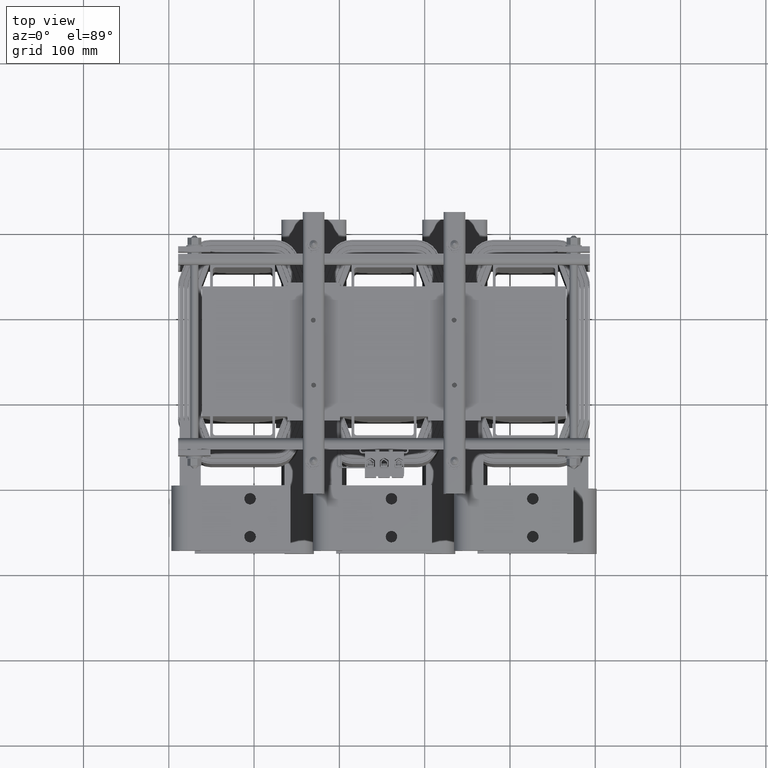
[diagram: clean part render]
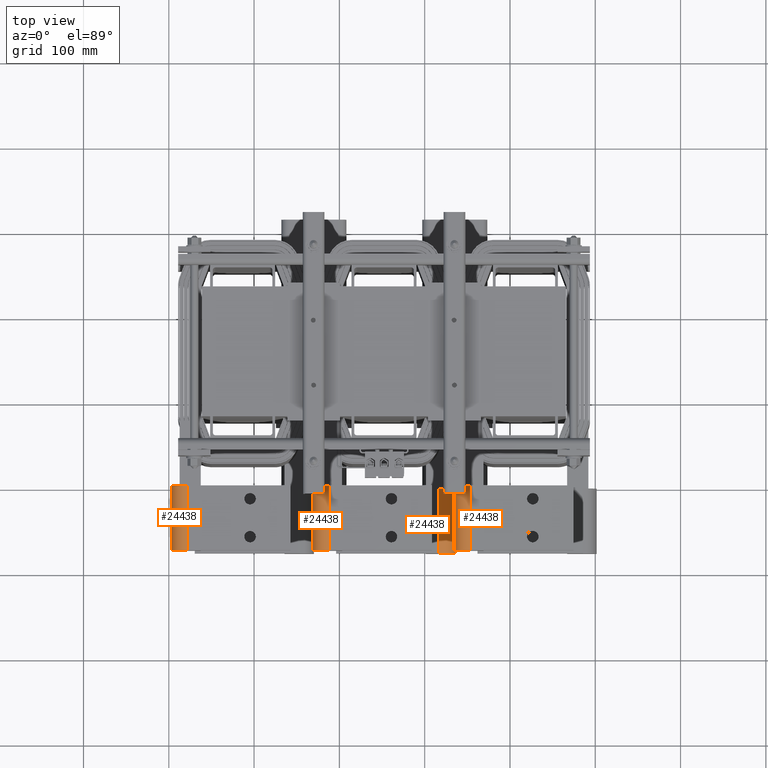
[diagram: same view with one multi-face feature highlighted, each face labeled with its STEP entity id]
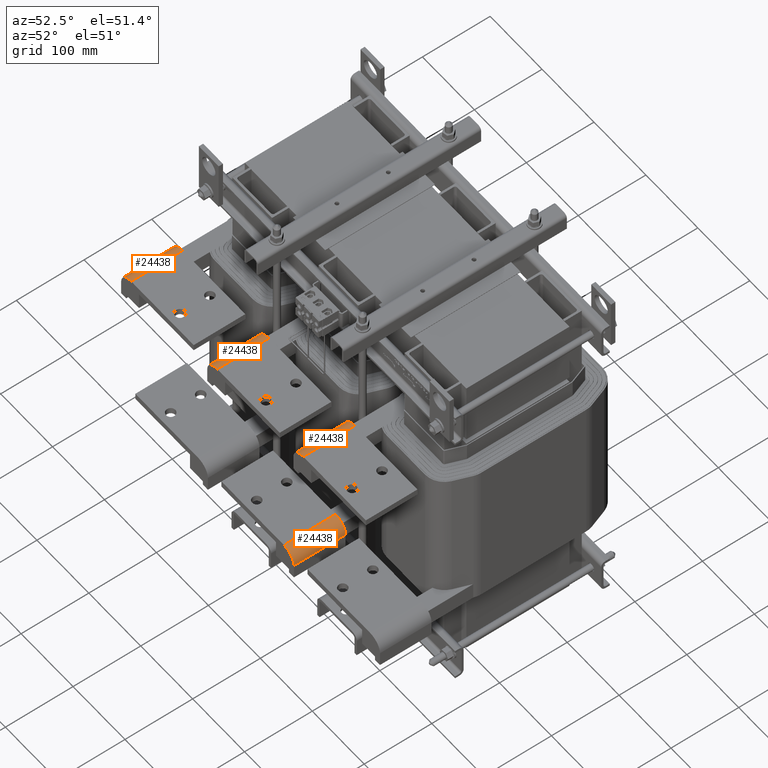
[diagram: same view with one multi-face feature highlighted, each face labeled with its STEP entity id]
A machine part, top view. The highlighted faces form ONE feature: a constant-radius fillet chain: 4 tangent blend faces with common blend radius 19.304 mm. The faces share edges in the B-rep.
A second angle (auxiliary view) of the same feature is appended — it is thin or edge-on in the first view.
Their STEP definitions:
[1] entity #24438 (Cylinder):
#1615=CIRCLE('',#26643,0.76);
#1617=CIRCLE('',#26646,0.76);
#2159=CYLINDRICAL_SURFACE('',#26645,0.76);
#3324=FACE_OUTER_BOUND('',#4703,.T.);
#4703=EDGE_LOOP('',(#20325,#20326,#20327,#20328));
#6839=LINE('',#41019,#9192);
#6840=LINE('',#41020,#9193);
#9192=VECTOR('',#31295,0.393700787401575);
#9193=VECTOR('',#31296,0.393700787401575);
#11463=VERTEX_POINT('',#41002);
#11464=VERTEX_POINT('',#41004);
#11469=VERTEX_POINT('',#41016);
#11470=VERTEX_POINT('',#41017);
#14539=EDGE_CURVE('',#11464,#11463,#1615,.T.);
#14545=EDGE_CURVE('',#11469,#11470,#1617,.T.);
#14546=EDGE_CURVE('',#11470,#11464,#6839,.T.);
#14547=EDGE_CURVE('',#11469,#11463,#6840,.T.);
#20325=ORIENTED_EDGE('',*,*,#14545,.T.);
#20326=ORIENTED_EDGE('',*,*,#14546,.T.);
#20327=ORIENTED_EDGE('',*,*,#14539,.T.);
#20328=ORIENTED_EDGE('',*,*,#14547,.F.);
#24438=ADVANCED_FACE('',(#3324),#2159,.T.);
#26643=AXIS2_PLACEMENT_3D('',#41005,#31283,#31284);
#26645=AXIS2_PLACEMENT_3D('',#41015,#31291,#31292);
#26646=AXIS2_PLACEMENT_3D('',#41018,#31293,#31294);
#31283=DIRECTION('center_axis',(0.,0.,1.));
#31284=DIRECTION('ref_axis',(0.,-1.,0.));
#31291=DIRECTION('center_axis',(0.,0.,1.));
#31292=DIRECTION('ref_axis',(0.,-1.,0.));
#31293=DIRECTION('center_axis',(0.,0.,-1.));
#31294=DIRECTION('ref_axis',(0.,-1.,0.));
#31295=DIRECTION('',(0.,0.,-1.));
#31296=DIRECTION('',(0.,0.,-1.));
#41002=CARTESIAN_POINT('',(3.49676543189026E-16,-0.0723516889799159,-1.5));
#41004=CARTESIAN_POINT('',(0.76,0.687648311020084,-1.5));
#41005=CARTESIAN_POINT('Origin',(0.76,-0.0723516889799157,-1.5));
#41015=CARTESIAN_POINT('Origin',(0.76,-0.0723516889799157,0.));
#41016=CARTESIAN_POINT('',(3.49676543189026E-16,-0.0723516889799159,1.5));
#41017=CARTESIAN_POINT('',(0.76,0.687648311020084,1.5));
#41018=CARTESIAN_POINT('Origin',(0.76,-0.0723516889799157,1.5));
#41019=CARTESIAN_POINT('',(0.76,0.687648311020084,0.));
#41020=CARTESIAN_POINT('',(3.49676543189026E-16,-0.0723516889799159,0.));
[2] entity #24438 (Cylinder):
#1615=CIRCLE('',#26643,0.76);
#1617=CIRCLE('',#26646,0.76);
#2159=CYLINDRICAL_SURFACE('',#26645,0.76);
#3324=FACE_OUTER_BOUND('',#4703,.T.);
#4703=EDGE_LOOP('',(#20325,#20326,#20327,#20328));
#6839=LINE('',#41019,#9192);
#6840=LINE('',#41020,#9193);
#9192=VECTOR('',#31295,0.393700787401575);
#9193=VECTOR('',#31296,0.393700787401575);
#11463=VERTEX_POINT('',#41002);
#11464=VERTEX_POINT('',#41004);
#11469=VERTEX_POINT('',#41016);
#11470=VERTEX_POINT('',#41017);
#14539=EDGE_CURVE('',#11464,#11463,#1615,.T.);
#14545=EDGE_CURVE('',#11469,#11470,#1617,.T.);
#14546=EDGE_CURVE('',#11470,#11464,#6839,.T.);
#14547=EDGE_CURVE('',#11469,#11463,#6840,.T.);
#20325=ORIENTED_EDGE('',*,*,#14545,.T.);
#20326=ORIENTED_EDGE('',*,*,#14546,.T.);
#20327=ORIENTED_EDGE('',*,*,#14539,.T.);
#20328=ORIENTED_EDGE('',*,*,#14547,.F.);
#24438=ADVANCED_FACE('',(#3324),#2159,.T.);
#26643=AXIS2_PLACEMENT_3D('',#41005,#31283,#31284);
#26645=AXIS2_PLACEMENT_3D('',#41015,#31291,#31292);
#26646=AXIS2_PLACEMENT_3D('',#41018,#31293,#31294);
#31283=DIRECTION('center_axis',(0.,0.,1.));
#31284=DIRECTION('ref_axis',(0.,-1.,0.));
#31291=DIRECTION('center_axis',(0.,0.,1.));
#31292=DIRECTION('ref_axis',(0.,-1.,0.));
#31293=DIRECTION('center_axis',(0.,0.,-1.));
#31294=DIRECTION('ref_axis',(0.,-1.,0.));
#31295=DIRECTION('',(0.,0.,-1.));
#31296=DIRECTION('',(0.,0.,-1.));
#41002=CARTESIAN_POINT('',(3.49676543189026E-16,-0.0723516889799159,-1.5));
#41004=CARTESIAN_POINT('',(0.76,0.687648311020084,-1.5));
#41005=CARTESIAN_POINT('Origin',(0.76,-0.0723516889799157,-1.5));
#41015=CARTESIAN_POINT('Origin',(0.76,-0.0723516889799157,0.));
#41016=CARTESIAN_POINT('',(3.49676543189026E-16,-0.0723516889799159,1.5));
#41017=CARTESIAN_POINT('',(0.76,0.687648311020084,1.5));
#41018=CARTESIAN_POINT('Origin',(0.76,-0.0723516889799157,1.5));
#41019=CARTESIAN_POINT('',(0.76,0.687648311020084,0.));
#41020=CARTESIAN_POINT('',(3.49676543189026E-16,-0.0723516889799159,0.));
[3] entity #24438 (Cylinder):
#1615=CIRCLE('',#26643,0.76);
#1617=CIRCLE('',#26646,0.76);
#2159=CYLINDRICAL_SURFACE('',#26645,0.76);
#3324=FACE_OUTER_BOUND('',#4703,.T.);
#4703=EDGE_LOOP('',(#20325,#20326,#20327,#20328));
#6839=LINE('',#41019,#9192);
#6840=LINE('',#41020,#9193);
#9192=VECTOR('',#31295,0.393700787401575);
#9193=VECTOR('',#31296,0.393700787401575);
#11463=VERTEX_POINT('',#41002);
#11464=VERTEX_POINT('',#41004);
#11469=VERTEX_POINT('',#41016);
#11470=VERTEX_POINT('',#41017);
#14539=EDGE_CURVE('',#11464,#11463,#1615,.T.);
#14545=EDGE_CURVE('',#11469,#11470,#1617,.T.);
#14546=EDGE_CURVE('',#11470,#11464,#6839,.T.);
#14547=EDGE_CURVE('',#11469,#11463,#6840,.T.);
#20325=ORIENTED_EDGE('',*,*,#14545,.T.);
#20326=ORIENTED_EDGE('',*,*,#14546,.T.);
#20327=ORIENTED_EDGE('',*,*,#14539,.T.);
#20328=ORIENTED_EDGE('',*,*,#14547,.F.);
#24438=ADVANCED_FACE('',(#3324),#2159,.T.);
#26643=AXIS2_PLACEMENT_3D('',#41005,#31283,#31284);
#26645=AXIS2_PLACEMENT_3D('',#41015,#31291,#31292);
#26646=AXIS2_PLACEMENT_3D('',#41018,#31293,#31294);
#31283=DIRECTION('center_axis',(0.,0.,1.));
#31284=DIRECTION('ref_axis',(0.,-1.,0.));
#31291=DIRECTION('center_axis',(0.,0.,1.));
#31292=DIRECTION('ref_axis',(0.,-1.,0.));
#31293=DIRECTION('center_axis',(0.,0.,-1.));
#31294=DIRECTION('ref_axis',(0.,-1.,0.));
#31295=DIRECTION('',(0.,0.,-1.));
#31296=DIRECTION('',(0.,0.,-1.));
#41002=CARTESIAN_POINT('',(3.49676543189026E-16,-0.0723516889799159,-1.5));
#41004=CARTESIAN_POINT('',(0.76,0.687648311020084,-1.5));
#41005=CARTESIAN_POINT('Origin',(0.76,-0.0723516889799157,-1.5));
#41015=CARTESIAN_POINT('Origin',(0.76,-0.0723516889799157,0.));
#41016=CARTESIAN_POINT('',(3.49676543189026E-16,-0.0723516889799159,1.5));
#41017=CARTESIAN_POINT('',(0.76,0.687648311020084,1.5));
#41018=CARTESIAN_POINT('Origin',(0.76,-0.0723516889799157,1.5));
#41019=CARTESIAN_POINT('',(0.76,0.687648311020084,0.));
#41020=CARTESIAN_POINT('',(3.49676543189026E-16,-0.0723516889799159,0.));
[4] entity #24438 (Cylinder):
#1615=CIRCLE('',#26643,0.76);
#1617=CIRCLE('',#26646,0.76);
#2159=CYLINDRICAL_SURFACE('',#26645,0.76);
#3324=FACE_OUTER_BOUND('',#4703,.T.);
#4703=EDGE_LOOP('',(#20325,#20326,#20327,#20328));
#6839=LINE('',#41019,#9192);
#6840=LINE('',#41020,#9193);
#9192=VECTOR('',#31295,0.393700787401575);
#9193=VECTOR('',#31296,0.393700787401575);
#11463=VERTEX_POINT('',#41002);
#11464=VERTEX_POINT('',#41004);
#11469=VERTEX_POINT('',#41016);
#11470=VERTEX_POINT('',#41017);
#14539=EDGE_CURVE('',#11464,#11463,#1615,.T.);
#14545=EDGE_CURVE('',#11469,#11470,#1617,.T.);
#14546=EDGE_CURVE('',#11470,#11464,#6839,.T.);
#14547=EDGE_CURVE('',#11469,#11463,#6840,.T.);
#20325=ORIENTED_EDGE('',*,*,#14545,.T.);
#20326=ORIENTED_EDGE('',*,*,#14546,.T.);
#20327=ORIENTED_EDGE('',*,*,#14539,.T.);
#20328=ORIENTED_EDGE('',*,*,#14547,.F.);
#24438=ADVANCED_FACE('',(#3324),#2159,.T.);
#26643=AXIS2_PLACEMENT_3D('',#41005,#31283,#31284);
#26645=AXIS2_PLACEMENT_3D('',#41015,#31291,#31292);
#26646=AXIS2_PLACEMENT_3D('',#41018,#31293,#31294);
#31283=DIRECTION('center_axis',(0.,0.,1.));
#31284=DIRECTION('ref_axis',(0.,-1.,0.));
#31291=DIRECTION('center_axis',(0.,0.,1.));
#31292=DIRECTION('ref_axis',(0.,-1.,0.));
#31293=DIRECTION('center_axis',(0.,0.,-1.));
#31294=DIRECTION('ref_axis',(0.,-1.,0.));
#31295=DIRECTION('',(0.,0.,-1.));
#31296=DIRECTION('',(0.,0.,-1.));
#41002=CARTESIAN_POINT('',(3.49676543189026E-16,-0.0723516889799159,-1.5));
#41004=CARTESIAN_POINT('',(0.76,0.687648311020084,-1.5));
#41005=CARTESIAN_POINT('Origin',(0.76,-0.0723516889799157,-1.5));
#41015=CARTESIAN_POINT('Origin',(0.76,-0.0723516889799157,0.));
#41016=CARTESIAN_POINT('',(3.49676543189026E-16,-0.0723516889799159,1.5));
#41017=CARTESIAN_POINT('',(0.76,0.687648311020084,1.5));
#41018=CARTESIAN_POINT('Origin',(0.76,-0.0723516889799157,1.5));
#41019=CARTESIAN_POINT('',(0.76,0.687648311020084,0.));
#41020=CARTESIAN_POINT('',(3.49676543189026E-16,-0.0723516889799159,0.));